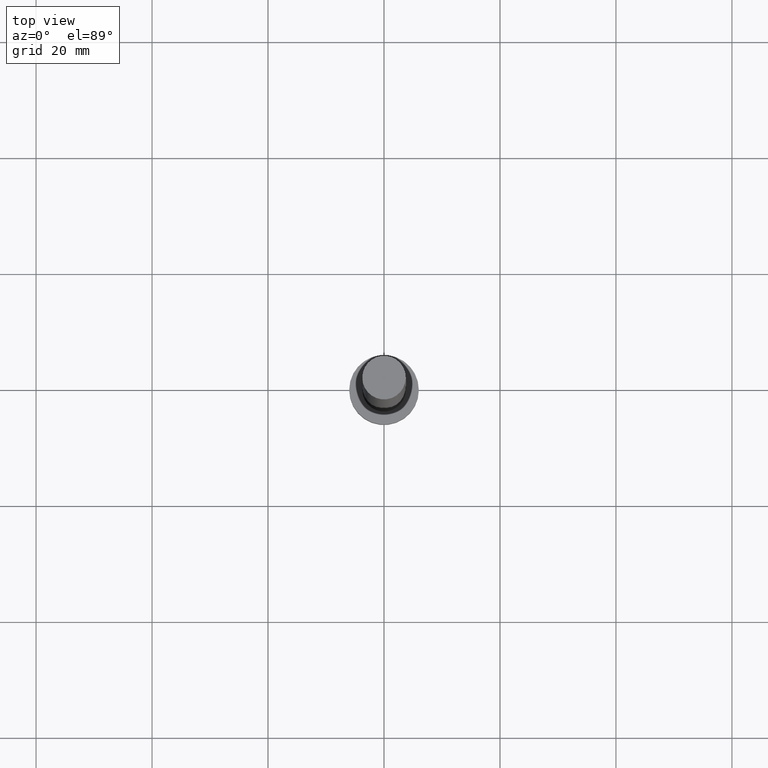
[diagram: clean part render]
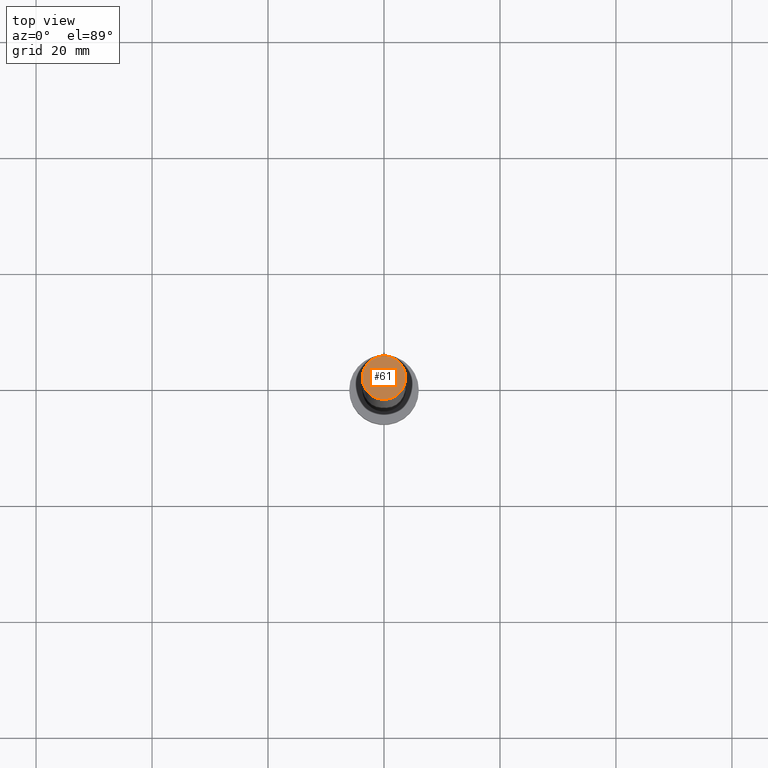
[diagram: same view with one face highlighted and labeled with its STEP entity id]
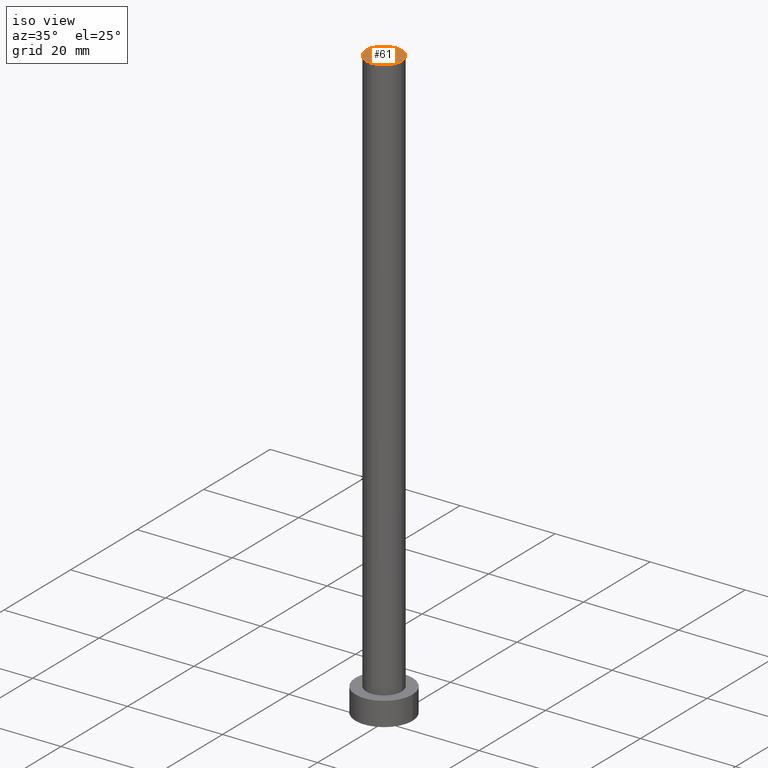
[diagram: same view with one face highlighted and labeled with its STEP entity id]
A machine part, top view. The second image highlights one B-rep face of the part: STEP entity #61.
A second angle (iso view) of the same face is appended — the face is thin or edge-on in the first view.
In plain terms, the highlighted planar face has unit normal (0, 0, 1).
Its self-contained STEP definition (entity closure, byte-faithful):
#13 = CARTESIAN_POINT ( 'NONE',  ( 0.000000000000000000, 0.000000000000000000, 125.0000000000000000 ) ) ;
#16 = CARTESIAN_POINT ( 'NONE',  ( -3.750000000000000000, 0.000000000000000000, 125.0000000000000000 ) ) ;
#17 = AXIS2_PLACEMENT_3D ( 'NONE', #13, #113, #59 ) ;
#36 = CARTESIAN_POINT ( 'NONE',  ( 0.000000000000000000, 0.000000000000000000, 125.0000000000000000 ) ) ;
#37 = DIRECTION ( 'NONE',  ( 1.000000000000000000, 0.000000000000000000, 0.000000000000000000 ) ) ;
#59 = DIRECTION ( 'NONE',  ( 1.000000000000000000, 0.000000000000000000, 0.000000000000000000 ) ) ;
#61 = ADVANCED_FACE ( 'NONE', ( #251 ), #116, .T. ) ;
#80 = DIRECTION ( 'NONE',  ( 0.000000000000000000, 0.000000000000000000, 1.000000000000000000 ) ) ;
#96 = ORIENTED_EDGE ( 'NONE', *, *, #102, .T. ) ;
#102 = EDGE_CURVE ( 'NONE', #225, #226, #135, .T. ) ;
#113 = DIRECTION ( 'NONE',  ( 0.000000000000000000, 0.000000000000000000, 1.000000000000000000 ) ) ;
#116 = PLANE ( 'NONE',  #240 ) ;
#129 = ORIENTED_EDGE ( 'NONE', *, *, #148, .T. ) ;
#135 = CIRCLE ( 'NONE', #17, 3.750000000000000000 ) ;
#138 = CARTESIAN_POINT ( 'NONE',  ( 3.750000000000000000, 4.592425496802573972E-16, 125.0000000000000000 ) ) ;
#148 = EDGE_CURVE ( 'NONE', #226, #225, #180, .T. ) ;
#170 = DIRECTION ( 'NONE',  ( 1.000000000000000000, 0.000000000000000000, -0.000000000000000000 ) ) ;
#180 = CIRCLE ( 'NONE', #194, 3.750000000000000000 ) ;
#194 = AXIS2_PLACEMENT_3D ( 'NONE', #252, #231, #37 ) ;
#212 = EDGE_LOOP ( 'NONE', ( #129, #96 ) ) ;
#225 = VERTEX_POINT ( 'NONE', #138 ) ;
#226 = VERTEX_POINT ( 'NONE', #16 ) ;
#231 = DIRECTION ( 'NONE',  ( 0.000000000000000000, 0.000000000000000000, 1.000000000000000000 ) ) ;
#240 = AXIS2_PLACEMENT_3D ( 'NONE', #36, #80, #170 ) ;
#251 = FACE_OUTER_BOUND ( 'NONE', #212, .T. ) ;
#252 = CARTESIAN_POINT ( 'NONE',  ( 0.000000000000000000, 0.000000000000000000, 125.0000000000000000 ) ) ;